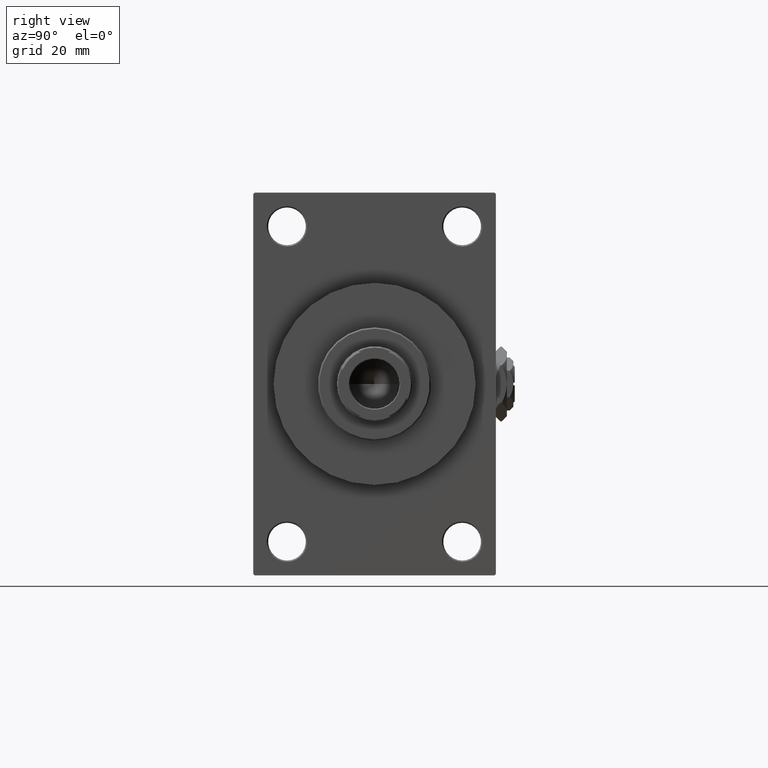
[diagram: clean part render]
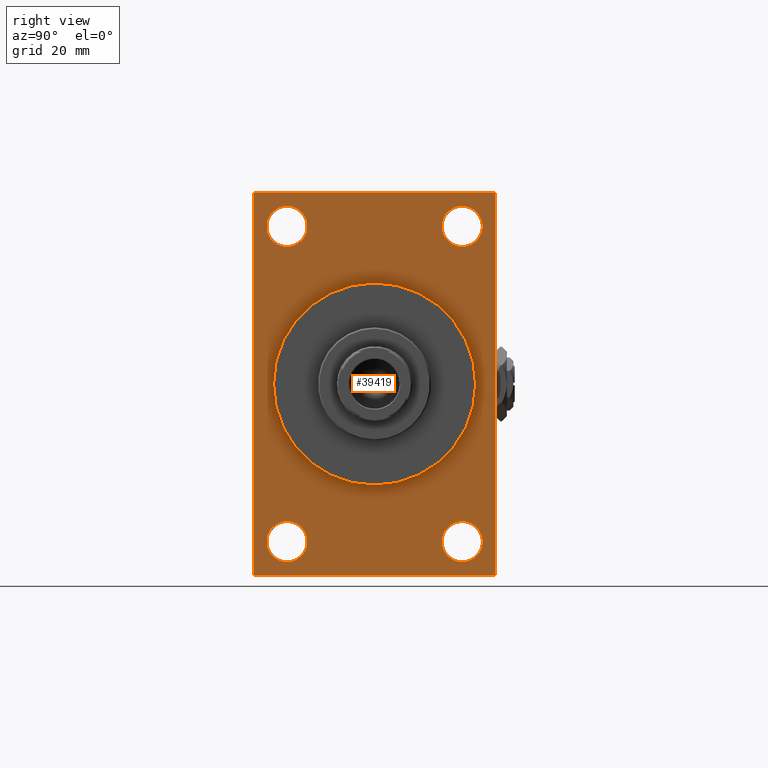
[diagram: same view with one face highlighted and labeled with its STEP entity id]
A machine part, right view. The second image highlights one B-rep face of the part: STEP entity #39419.
In plain terms, the highlighted planar face has unit normal (-1, 0, 0).
Its self-contained STEP definition (entity closure, byte-faithful):
#191 = DIRECTION ( 'NONE',  ( 0.000000000000000000, 0.000000000000000000, -1.000000000000000000 ) ) ;
#608 = VERTEX_POINT ( 'NONE', #7520 ) ;
#1017 = VERTEX_POINT ( 'NONE', #11440 ) ;
#1213 = VERTEX_POINT ( 'NONE', #44045 ) ;
#1243 = CARTESIAN_POINT ( 'NONE',  ( 147.0000000000000284, -44.49999999999991473, -71.00000000000000000 ) ) ;
#1861 = AXIS2_PLACEMENT_3D ( 'NONE', #22749, #14537, #10556 ) ;
#2361 = VECTOR ( 'NONE', #39227, 1000.000000000000000 ) ;
#2556 = EDGE_LOOP ( 'NONE', ( #5244, #22351 ) ) ;
#2784 = CIRCLE ( 'NONE', #48924, 7.499999999999965361 ) ;
#2935 = ORIENTED_EDGE ( 'NONE', *, *, #12135, .T. ) ;
#3265 = EDGE_LOOP ( 'NONE', ( #18665, #6868 ) ) ;
#3358 = VERTEX_POINT ( 'NONE', #37141 ) ;
#3382 = VERTEX_POINT ( 'NONE', #22654 ) ;
#3901 = CARTESIAN_POINT ( 'NONE',  ( 147.0000000000000284, 0.000000000000000000, 0.000000000000000000 ) ) ;
#3970 = VECTOR ( 'NONE', #191, 1000.000000000000000 ) ;
#4904 = CARTESIAN_POINT ( 'NONE',  ( 147.0000000000000284, 44.50000000000002132, 71.00000000000000000 ) ) ;
#4966 = CARTESIAN_POINT ( 'NONE',  ( 147.0000000000000284, 44.50000000000002132, 71.00000000000000000 ) ) ;
#5244 = ORIENTED_EDGE ( 'NONE', *, *, #26151, .T. ) ;
#6103 = DIRECTION ( 'NONE',  ( -1.000000000000000000, 0.000000000000000000, -0.000000000000000000 ) ) ;
#6352 = DIRECTION ( 'NONE',  ( 0.000000000000000000, 0.000000000000000000, 1.000000000000000000 ) ) ;
#6868 = ORIENTED_EDGE ( 'NONE', *, *, #37028, .T. ) ;
#7520 = CARTESIAN_POINT ( 'NONE',  ( 147.0000000000000284, -44.49999999999995026, 70.99999999999998579 ) ) ;
#7936 = CARTESIAN_POINT ( 'NONE',  ( 147.0000000000000284, -32.50000000000000000, -66.00000000000004263 ) ) ;
#8017 = PLANE ( 'NONE',  #12257 ) ;
#8182 = AXIS2_PLACEMENT_3D ( 'NONE', #3901, #41765, #23053 ) ;
#8522 = CARTESIAN_POINT ( 'NONE',  ( 147.0000000000000284, 0.000000000000000000, 0.000000000000000000 ) ) ;
#8736 = DIRECTION ( 'NONE',  ( -1.000000000000000000, 0.000000000000000000, -0.000000000000000000 ) ) ;
#8743 = DIRECTION ( 'NONE',  ( -0.000000000000000000, -0.7071067811865426878, -0.7071067811865524577 ) ) ;
#8985 = CARTESIAN_POINT ( 'NONE',  ( 147.0000000000000284, 32.50000000000000711, 58.50000000000000711 ) ) ;
#9370 = CARTESIAN_POINT ( 'NONE',  ( 147.0000000000000284, 45.00000000000002132, 71.00000000000000000 ) ) ;
#9536 = ORIENTED_EDGE ( 'NONE', *, *, #25556, .T. ) ;
#10357 = CIRCLE ( 'NONE', #43009, 7.499999999999965361 ) ;
#10556 = DIRECTION ( 'NONE',  ( 0.000000000000000000, 0.000000000000000000, 1.000000000000000000 ) ) ;
#10732 = CARTESIAN_POINT ( 'NONE',  ( 147.0000000000000284, -32.50000000000000000, -50.99999999999992895 ) ) ;
#11147 = LINE ( 'NONE', #41799, #3970 ) ;
#11419 = CIRCLE ( 'NONE', #1861, 7.500000000000069278 ) ;
#11440 = CARTESIAN_POINT ( 'NONE',  ( 147.0000000000000284, -44.99999999999997158, -70.49999999999998579 ) ) ;
#11751 = FACE_BOUND ( 'NONE', #3265, .T. ) ;
#12135 = EDGE_CURVE ( 'NONE', #1213, #1017, #11147, .T. ) ;
#12231 = CARTESIAN_POINT ( 'NONE',  ( 147.0000000000000284, 0.000000000000000000, 0.000000000000000000 ) ) ;
#12257 = AXIS2_PLACEMENT_3D ( 'NONE', #12231, #8736, #23928 ) ;
#12399 = EDGE_CURVE ( 'NONE', #34787, #35965, #14259, .T. ) ;
#12762 = EDGE_CURVE ( 'NONE', #15306, #42847, #17265, .T. ) ;
#13209 = EDGE_LOOP ( 'NONE', ( #2935, #31354, #16935, #47113, #20434, #22058, #9536, #22531 ) ) ;
#14241 = CARTESIAN_POINT ( 'NONE',  ( 147.0000000000000284, 0.000000000000000000, 37.50000000000000711 ) ) ;
#14259 = CIRCLE ( 'NONE', #18257, 7.500000000000069278 ) ;
#14301 = VECTOR ( 'NONE', #44268, 1000.000000000000000 ) ;
#14439 = AXIS2_PLACEMENT_3D ( 'NONE', #8522, #46662, #27217 ) ;
#14537 = DIRECTION ( 'NONE',  ( -1.000000000000000000, 0.000000000000000000, -0.000000000000000000 ) ) ;
#14664 = DIRECTION ( 'NONE',  ( -1.000000000000000000, 0.000000000000000000, -0.000000000000000000 ) ) ;
#15114 = ORIENTED_EDGE ( 'NONE', *, *, #33409, .F. ) ;
#15306 = VERTEX_POINT ( 'NONE', #45393 ) ;
#15615 = CARTESIAN_POINT ( 'NONE',  ( 147.0000000000000284, 4.592425496802575156E-15, -37.50000000000000711 ) ) ;
#15843 = LINE ( 'NONE', #4904, #45789 ) ;
#16088 = DIRECTION ( 'NONE',  ( 0.000000000000000000, -0.7071067811865474617, 0.7071067811865474617 ) ) ;
#16735 = CIRCLE ( 'NONE', #39055, 7.499999999999965361 ) ;
#16748 = CARTESIAN_POINT ( 'NONE',  ( 147.0000000000000284, 32.50000000000000711, -58.50000000000000000 ) ) ;
#16813 = CIRCLE ( 'NONE', #14439, 37.50000000000000711 ) ;
#16935 = ORIENTED_EDGE ( 'NONE', *, *, #33452, .F. ) ;
#17195 = DIRECTION ( 'NONE',  ( 0.000000000000000000, 0.000000000000000000, 1.000000000000000000 ) ) ;
#17254 = VERTEX_POINT ( 'NONE', #45756 ) ;
#17265 = LINE ( 'NONE', #36219, #2361 ) ;
#17543 = CARTESIAN_POINT ( 'NONE',  ( 147.0000000000000284, -32.50000000000000000, 58.50000000000000711 ) ) ;
#17555 = CIRCLE ( 'NONE', #45441, 7.500000000000062172 ) ;
#17710 = AXIS2_PLACEMENT_3D ( 'NONE', #30127, #14664, #29382 ) ;
#17874 = VECTOR ( 'NONE', #34515, 999.9999999999998863 ) ;
#18257 = AXIS2_PLACEMENT_3D ( 'NONE', #40268, #29035, #36274 ) ;
#18280 = EDGE_CURVE ( 'NONE', #3358, #35637, #16735, .T. ) ;
#18570 = EDGE_CURVE ( 'NONE', #29036, #22283, #17555, .T. ) ;
#18665 = ORIENTED_EDGE ( 'NONE', *, *, #12399, .T. ) ;
#19046 = CARTESIAN_POINT ( 'NONE',  ( 147.0000000000000284, 45.00000000000001421, -70.50000000000001421 ) ) ;
#19492 = LINE ( 'NONE', #31449, #48689 ) ;
#19534 = LINE ( 'NONE', #23516, #17874 ) ;
#19772 = CARTESIAN_POINT ( 'NONE',  ( 147.0000000000000284, 32.50000000000000711, -50.99999999999993605 ) ) ;
#20434 = ORIENTED_EDGE ( 'NONE', *, *, #12762, .F. ) ;
#20488 = DIRECTION ( 'NONE',  ( -1.000000000000000000, 0.000000000000000000, -0.000000000000000000 ) ) ;
#21805 = CARTESIAN_POINT ( 'NONE',  ( 147.0000000000000284, 44.50000000000004263, -70.99999999999998579 ) ) ;
#21806 = CARTESIAN_POINT ( 'NONE',  ( 147.0000000000000284, 32.50000000000000711, -66.00000000000005684 ) ) ;
#21931 = VERTEX_POINT ( 'NONE', #4966 ) ;
#22058 = ORIENTED_EDGE ( 'NONE', *, *, #41689, .T. ) ;
#22283 = VERTEX_POINT ( 'NONE', #21806 ) ;
#22351 = ORIENTED_EDGE ( 'NONE', *, *, #28276, .T. ) ;
#22531 = ORIENTED_EDGE ( 'NONE', *, *, #47864, .T. ) ;
#22654 = CARTESIAN_POINT ( 'NONE',  ( 147.0000000000000284, 32.50000000000000711, 65.99999999999997158 ) ) ;
#22749 = CARTESIAN_POINT ( 'NONE',  ( 147.0000000000000284, -32.50000000000000000, -58.49999999999999289 ) ) ;
#22963 = VERTEX_POINT ( 'NONE', #15615 ) ;
#23053 = DIRECTION ( 'NONE',  ( 0.000000000000000000, 0.000000000000000000, -1.000000000000000000 ) ) ;
#23444 = FACE_BOUND ( 'NONE', #44241, .T. ) ;
#23516 = CARTESIAN_POINT ( 'NONE',  ( 147.0000000000000284, -44.49999999999994316, -71.00000000000000000 ) ) ;
#23928 = DIRECTION ( 'NONE',  ( -0.000000000000000000, 0.000000000000000000, 1.000000000000000000 ) ) ;
#24712 = DIRECTION ( 'NONE',  ( 0.000000000000000000, 0.000000000000000000, 1.000000000000000000 ) ) ;
#25010 = CARTESIAN_POINT ( 'NONE',  ( 147.0000000000000284, -32.50000000000000000, 58.50000000000000711 ) ) ;
#25187 = CARTESIAN_POINT ( 'NONE',  ( 147.0000000000000284, 32.50000000000000711, 58.50000000000000711 ) ) ;
#25556 = EDGE_CURVE ( 'NONE', #21931, #608, #43522, .T. ) ;
#25928 = DIRECTION ( 'NONE',  ( 0.000000000000000000, 0.000000000000000000, 1.000000000000000000 ) ) ;
#26151 = EDGE_CURVE ( 'NONE', #17254, #3382, #10357, .T. ) ;
#26263 = ORIENTED_EDGE ( 'NONE', *, *, #34664, .T. ) ;
#26943 = FACE_OUTER_BOUND ( 'NONE', #13209, .T. ) ;
#27217 = DIRECTION ( 'NONE',  ( 0.000000000000000000, 0.000000000000000000, -1.000000000000000000 ) ) ;
#27250 = LINE ( 'NONE', #19046, #31467 ) ;
#27674 = FACE_BOUND ( 'NONE', #42199, .T. ) ;
#28090 = CIRCLE ( 'NONE', #8182, 37.50000000000000711 ) ;
#28276 = EDGE_CURVE ( 'NONE', #3382, #17254, #34343, .T. ) ;
#29035 = DIRECTION ( 'NONE',  ( -1.000000000000000000, 0.000000000000000000, -0.000000000000000000 ) ) ;
#29036 = VERTEX_POINT ( 'NONE', #19772 ) ;
#29382 = DIRECTION ( 'NONE',  ( 0.000000000000000000, 0.000000000000000000, 1.000000000000000000 ) ) ;
#29661 = EDGE_LOOP ( 'NONE', ( #41125, #32714 ) ) ;
#29686 = DIRECTION ( 'NONE',  ( -1.000000000000000000, 0.000000000000000000, -0.000000000000000000 ) ) ;
#30127 = CARTESIAN_POINT ( 'NONE',  ( 147.0000000000000284, 32.50000000000000711, -58.50000000000000000 ) ) ;
#30975 = VERTEX_POINT ( 'NONE', #21805 ) ;
#31354 = ORIENTED_EDGE ( 'NONE', *, *, #42794, .T. ) ;
#31449 = CARTESIAN_POINT ( 'NONE',  ( 147.0000000000000284, 45.00000000000001421, -70.99999999999998579 ) ) ;
#31467 = VECTOR ( 'NONE', #42460, 999.9999999999998863 ) ;
#32435 = VERTEX_POINT ( 'NONE', #1243 ) ;
#32714 = ORIENTED_EDGE ( 'NONE', *, *, #40755, .T. ) ;
#32845 = LINE ( 'NONE', #48293, #39513 ) ;
#33409 = EDGE_CURVE ( 'NONE', #38375, #22963, #16813, .T. ) ;
#33452 = EDGE_CURVE ( 'NONE', #30975, #32435, #19492, .T. ) ;
#33749 = DIRECTION ( 'NONE',  ( 0.000000000000000000, 0.000000000000000000, 1.000000000000000000 ) ) ;
#34343 = CIRCLE ( 'NONE', #36720, 7.499999999999965361 ) ;
#34515 = DIRECTION ( 'NONE',  ( 0.000000000000000000, 0.7071067811865574537, -0.7071067811865376918 ) ) ;
#34664 = EDGE_CURVE ( 'NONE', #22283, #29036, #36001, .T. ) ;
#34787 = VERTEX_POINT ( 'NONE', #7936 ) ;
#34994 = ORIENTED_EDGE ( 'NONE', *, *, #36667, .F. ) ;
#35637 = VERTEX_POINT ( 'NONE', #38804 ) ;
#35965 = VERTEX_POINT ( 'NONE', #10732 ) ;
#36001 = CIRCLE ( 'NONE', #17710, 7.500000000000062172 ) ;
#36014 = DIRECTION ( 'NONE',  ( -1.000000000000000000, 0.000000000000000000, -0.000000000000000000 ) ) ;
#36219 = CARTESIAN_POINT ( 'NONE',  ( 147.0000000000000284, 45.00000000000002132, 71.00000000000000000 ) ) ;
#36274 = DIRECTION ( 'NONE',  ( 0.000000000000000000, 0.000000000000000000, 1.000000000000000000 ) ) ;
#36667 = EDGE_CURVE ( 'NONE', #22963, #38375, #28090, .T. ) ;
#36720 = AXIS2_PLACEMENT_3D ( 'NONE', #8985, #47612, #17195 ) ;
#37028 = EDGE_CURVE ( 'NONE', #35965, #34787, #11419, .T. ) ;
#37141 = CARTESIAN_POINT ( 'NONE',  ( 147.0000000000000284, -32.50000000000000000, 51.00000000000004263 ) ) ;
#38375 = VERTEX_POINT ( 'NONE', #14241 ) ;
#38498 = CARTESIAN_POINT ( 'NONE',  ( 147.0000000000000284, 45.00000000000001421, -70.50000000000001421 ) ) ;
#38804 = CARTESIAN_POINT ( 'NONE',  ( 147.0000000000000284, -32.50000000000000000, 65.99999999999997158 ) ) ;
#38938 = DIRECTION ( 'NONE',  ( 0.000000000000000000, -1.000000000000000000, -1.541976423090495633E-16 ) ) ;
#39055 = AXIS2_PLACEMENT_3D ( 'NONE', #25010, #6103, #33749 ) ;
#39227 = DIRECTION ( 'NONE',  ( 0.000000000000000000, -4.886545002751570165E-17, -1.000000000000000000 ) ) ;
#39419 = ADVANCED_FACE ( 'NONE', ( #45900, #11751, #23444, #46392, #27674, #26943 ), #8017, .F. ) ;
#39513 = VECTOR ( 'NONE', #8743, 1000.000000000000000 ) ;
#40268 = CARTESIAN_POINT ( 'NONE',  ( 147.0000000000000284, -32.50000000000000000, -58.49999999999999289 ) ) ;
#40755 = EDGE_CURVE ( 'NONE', #35637, #3358, #2784, .T. ) ;
#41125 = ORIENTED_EDGE ( 'NONE', *, *, #18280, .T. ) ;
#41689 = EDGE_CURVE ( 'NONE', #15306, #21931, #15843, .T. ) ;
#41765 = DIRECTION ( 'NONE',  ( 1.000000000000000000, 0.000000000000000000, 0.000000000000000000 ) ) ;
#41799 = CARTESIAN_POINT ( 'NONE',  ( 147.0000000000000284, -44.99999999999997158, 70.99999999999998579 ) ) ;
#41968 = EDGE_CURVE ( 'NONE', #30975, #42847, #27250, .T. ) ;
#42137 = ORIENTED_EDGE ( 'NONE', *, *, #18570, .T. ) ;
#42199 = EDGE_LOOP ( 'NONE', ( #15114, #34994 ) ) ;
#42460 = DIRECTION ( 'NONE',  ( -0.000000000000000000, 0.7071067811865574537, 0.7071067811865376918 ) ) ;
#42794 = EDGE_CURVE ( 'NONE', #1017, #32435, #19534, .T. ) ;
#42847 = VERTEX_POINT ( 'NONE', #38498 ) ;
#43009 = AXIS2_PLACEMENT_3D ( 'NONE', #25187, #29686, #25928 ) ;
#43522 = LINE ( 'NONE', #9370, #14301 ) ;
#44045 = CARTESIAN_POINT ( 'NONE',  ( 147.0000000000000284, -44.99999999999997158, 70.49999999999998579 ) ) ;
#44241 = EDGE_LOOP ( 'NONE', ( #26263, #42137 ) ) ;
#44268 = DIRECTION ( 'NONE',  ( 0.000000000000000000, -1.000000000000000000, -1.541976423090495387E-16 ) ) ;
#45393 = CARTESIAN_POINT ( 'NONE',  ( 147.0000000000000284, 45.00000000000002132, 70.50000000000000000 ) ) ;
#45441 = AXIS2_PLACEMENT_3D ( 'NONE', #16748, #20488, #24712 ) ;
#45756 = CARTESIAN_POINT ( 'NONE',  ( 147.0000000000000284, 32.50000000000000711, 51.00000000000004263 ) ) ;
#45789 = VECTOR ( 'NONE', #16088, 1000.000000000000114 ) ;
#45900 = FACE_BOUND ( 'NONE', #29661, .T. ) ;
#46392 = FACE_BOUND ( 'NONE', #2556, .T. ) ;
#46662 = DIRECTION ( 'NONE',  ( 1.000000000000000000, 0.000000000000000000, 0.000000000000000000 ) ) ;
#47113 = ORIENTED_EDGE ( 'NONE', *, *, #41968, .T. ) ;
#47612 = DIRECTION ( 'NONE',  ( -1.000000000000000000, 0.000000000000000000, -0.000000000000000000 ) ) ;
#47864 = EDGE_CURVE ( 'NONE', #608, #1213, #32845, .T. ) ;
#48293 = CARTESIAN_POINT ( 'NONE',  ( 147.0000000000000284, -44.99999999999997158, 70.49999999999998579 ) ) ;
#48689 = VECTOR ( 'NONE', #38938, 1000.000000000000000 ) ;
#48924 = AXIS2_PLACEMENT_3D ( 'NONE', #17543, #36014, #6352 ) ;